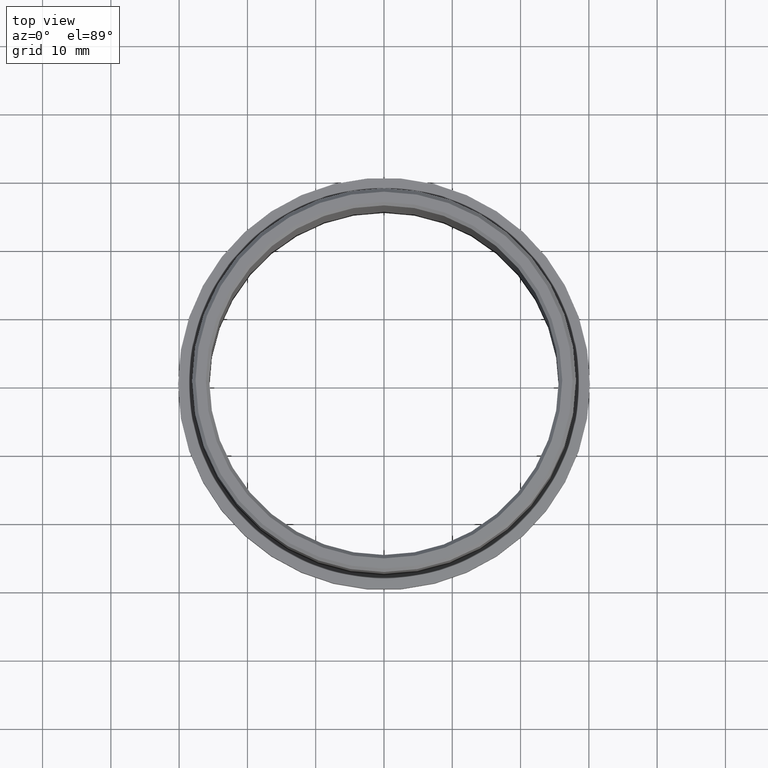
[diagram: clean part render]
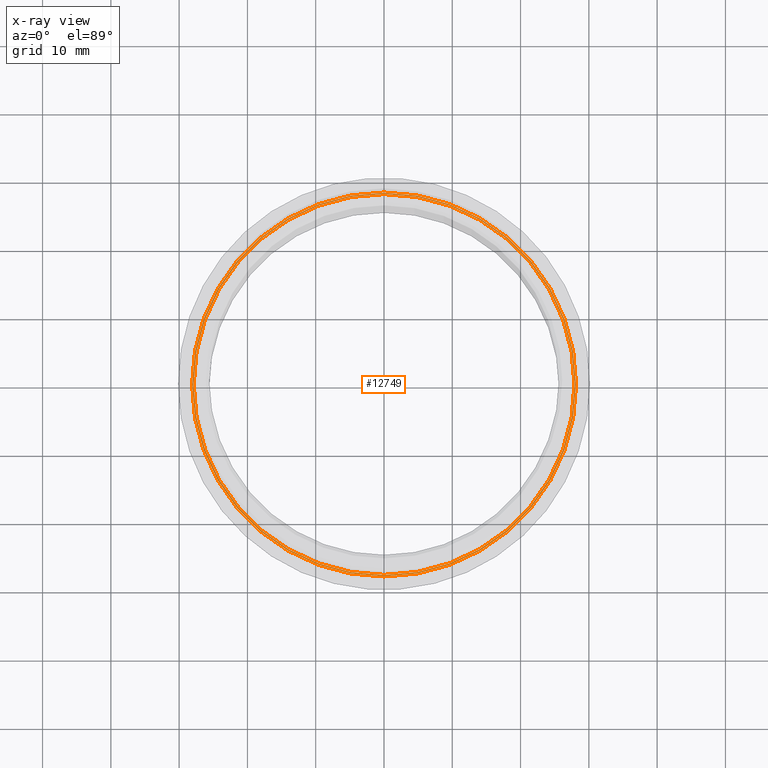
[diagram: x-ray — body ghosted, one internal face saturated and labeled with its STEP entity id]
A machine part, top view, then the same camera in x-ray: the body is ghosted and one INTERNAL B-rep face — a face not visible from any outside direction — is saturated and labeled: STEP entity #12749.
In plain terms, the highlighted planar face has unit normal (0, 0, -1).
Its self-contained STEP definition (entity closure, byte-faithful):
#323 = CARTESIAN_POINT ( 'NONE',  ( 0.0000000000000000000, 0.0000000000000000000, -5.500000000000000000 ) ) ;
#529 = PLANE ( 'NONE',  #6973 ) ;
#590 = AXIS2_PLACEMENT_3D ( 'NONE', #7143, #10448, #8928 ) ;
#1889 = EDGE_CURVE ( 'NONE', #20130, #11489, #2829, .T. ) ;
#2050 = DIRECTION ( 'NONE',  ( 1.000000000000000000, 0.0000000000000000000, 0.0000000000000000000 ) ) ;
#2829 = CIRCLE ( 'NONE', #590, 28.09999999999999800 ) ;
#4609 = DIRECTION ( 'NONE',  ( -0.0000000000000000000, -0.0000000000000000000, 1.000000000000000000 ) ) ;
#4897 = EDGE_CURVE ( 'NONE', #11489, #20130, #8641, .T. ) ;
#5136 = AXIS2_PLACEMENT_3D ( 'NONE', #323, #20343, #20422 ) ;
#6022 = VERTEX_POINT ( 'NONE', #12842 ) ;
#6973 = AXIS2_PLACEMENT_3D ( 'NONE', #15147, #20271, #2050 ) ;
#7143 = CARTESIAN_POINT ( 'NONE',  ( 0.0000000000000000000, 0.0000000000000000000, -5.500000000000000000 ) ) ;
#8474 = EDGE_LOOP ( 'NONE', ( #21209, #20189 ) ) ;
#8641 = CIRCLE ( 'NONE', #21538, 28.09999999999999800 ) ;
#8928 = DIRECTION ( 'NONE',  ( 1.000000000000000000, 0.0000000000000000000, 0.0000000000000000000 ) ) ;
#9195 = CIRCLE ( 'NONE', #5136, 27.89999999999999900 ) ;
#9455 = FACE_BOUND ( 'NONE', #11999, .T. ) ;
#10019 = EDGE_CURVE ( 'NONE', #11601, #6022, #11466, .T. ) ;
#10448 = DIRECTION ( 'NONE',  ( -0.0000000000000000000, -0.0000000000000000000, 1.000000000000000000 ) ) ;
#11466 = CIRCLE ( 'NONE', #11789, 27.89999999999999900 ) ;
#11489 = VERTEX_POINT ( 'NONE', #21360 ) ;
#11601 = VERTEX_POINT ( 'NONE', #19802 ) ;
#11789 = AXIS2_PLACEMENT_3D ( 'NONE', #21064, #14226, #19266 ) ;
#11900 = ORIENTED_EDGE ( 'NONE', *, *, #10019, .F. ) ;
#11999 = EDGE_LOOP ( 'NONE', ( #15512, #11900 ) ) ;
#12667 = EDGE_CURVE ( 'NONE', #6022, #11601, #9195, .T. ) ;
#12746 = CARTESIAN_POINT ( 'NONE',  ( 0.0000000000000000000, 0.0000000000000000000, -5.500000000000000000 ) ) ;
#12749 = ADVANCED_FACE ( 'NONE', ( #9455, #18095 ), #529, .F. ) ;
#12842 = CARTESIAN_POINT ( 'NONE',  ( -27.89999999999999900, 0.0000000000000000000, -5.500000000000000000 ) ) ;
#13352 = CARTESIAN_POINT ( 'NONE',  ( 28.09999999999999800, -3.441257505604061800E-015, -5.500000000000000000 ) ) ;
#14226 = DIRECTION ( 'NONE',  ( -0.0000000000000000000, -0.0000000000000000000, 1.000000000000000000 ) ) ;
#15147 = CARTESIAN_POINT ( 'NONE',  ( 0.0000000000000000000, 0.0000000000000000000, -5.500000000000000000 ) ) ;
#15512 = ORIENTED_EDGE ( 'NONE', *, *, #12667, .F. ) ;
#16112 = DIRECTION ( 'NONE',  ( 1.000000000000000000, 0.0000000000000000000, 0.0000000000000000000 ) ) ;
#18095 = FACE_OUTER_BOUND ( 'NONE', #8474, .T. ) ;
#19266 = DIRECTION ( 'NONE',  ( 1.000000000000000000, 0.0000000000000000000, 0.0000000000000000000 ) ) ;
#19802 = CARTESIAN_POINT ( 'NONE',  ( 27.89999999999999900, -3.416764569621115100E-015, -5.500000000000000000 ) ) ;
#20130 = VERTEX_POINT ( 'NONE', #13352 ) ;
#20189 = ORIENTED_EDGE ( 'NONE', *, *, #1889, .T. ) ;
#20271 = DIRECTION ( 'NONE',  ( 0.0000000000000000000, 0.0000000000000000000, -1.000000000000000000 ) ) ;
#20343 = DIRECTION ( 'NONE',  ( -0.0000000000000000000, -0.0000000000000000000, 1.000000000000000000 ) ) ;
#20422 = DIRECTION ( 'NONE',  ( 1.000000000000000000, 0.0000000000000000000, 0.0000000000000000000 ) ) ;
#21064 = CARTESIAN_POINT ( 'NONE',  ( 0.0000000000000000000, 0.0000000000000000000, -5.500000000000000000 ) ) ;
#21209 = ORIENTED_EDGE ( 'NONE', *, *, #4897, .T. ) ;
#21360 = CARTESIAN_POINT ( 'NONE',  ( -28.09999999999999800, 0.0000000000000000000, -5.500000000000000000 ) ) ;
#21538 = AXIS2_PLACEMENT_3D ( 'NONE', #12746, #4609, #16112 ) ;